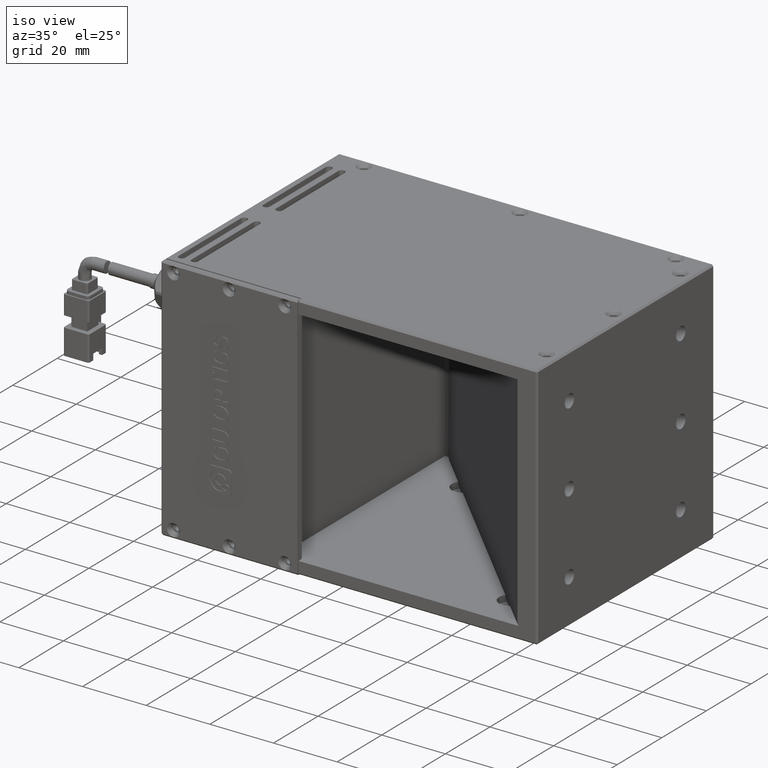
[diagram: clean part render]
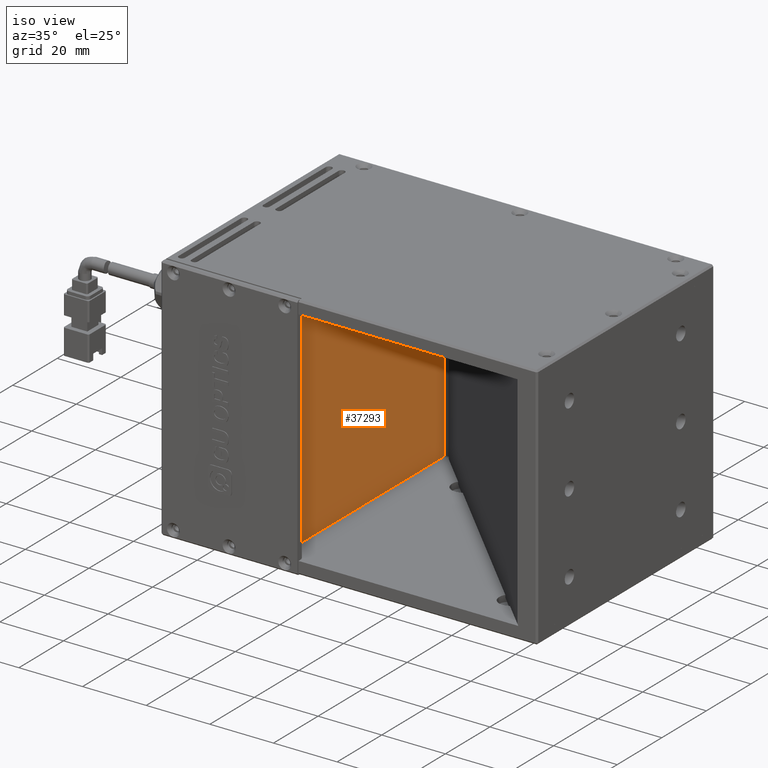
[diagram: same view with one face highlighted and labeled with its STEP entity id]
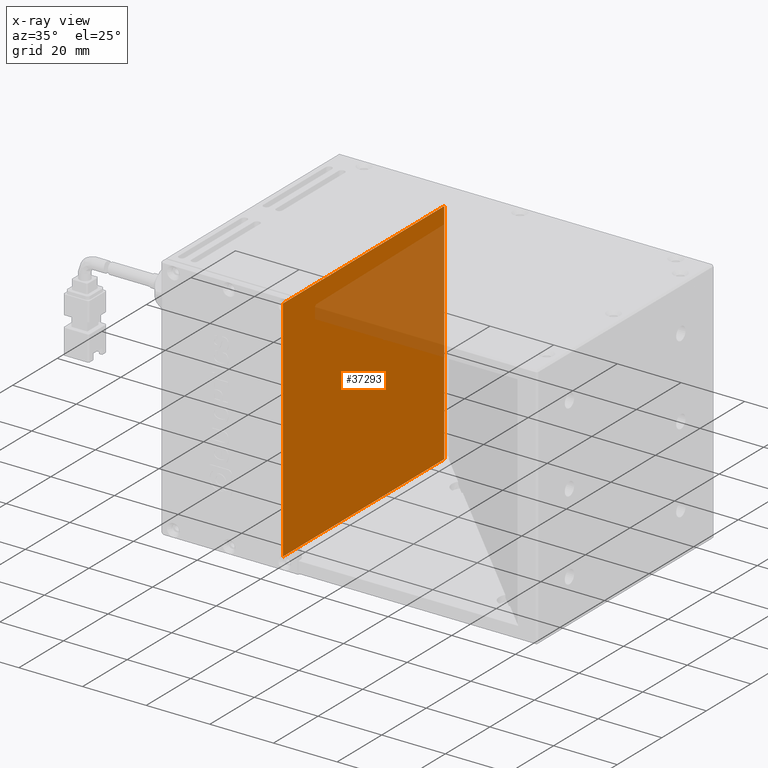
[diagram: x-ray of the same camera — body ghosted, the highlighted face saturated]
A machine part, iso view. The second image highlights one B-rep face of the part: STEP entity #37293.
The next image is the same camera in x-ray: the body ghosted, the highlighted face saturated — about 23% of this face is hidden behind the body in this view.
In plain terms, the highlighted planar face has unit normal (-1, 0, -0).
Its self-contained STEP definition (entity closure, byte-faithful):
#412 = DIRECTION ( 'NONE',  ( 1.146924612216070700E-016, 1.000000000000000000, -2.465190328815661900E-032 ) ) ;
#1282 = VERTEX_POINT ( 'NONE', #6835 ) ;
#2641 = VECTOR ( 'NONE', #11628, 1000.000000000000000 ) ;
#5765 = EDGE_LOOP ( 'NONE', ( #67454, #19610, #57285, #51862 ) ) ;
#6107 = CARTESIAN_POINT ( 'NONE',  ( -35.96055359734604900, -15.91808924827790900, 3.000000000009550600 ) ) ;
#6835 = CARTESIAN_POINT ( 'NONE',  ( -35.96055359734604900, -15.91808924827790900, 74.90000000000955500 ) ) ;
#7807 = VERTEX_POINT ( 'NONE', #23026 ) ;
#9333 = CARTESIAN_POINT ( 'NONE',  ( -35.96055359734604900, -15.91808924827790900, 3.000000000009550600 ) ) ;
#11171 = PLANE ( 'NONE',  #22100 ) ;
#11551 = LINE ( 'NONE', #58669, #39074 ) ;
#11628 = DIRECTION ( 'NONE',  ( 1.146924612216070700E-016, 1.000000000000000000, -2.465190328815661900E-032 ) ) ;
#12231 = LINE ( 'NONE', #62930, #41454 ) ;
#13198 = CARTESIAN_POINT ( 'NONE',  ( -35.96055359734603500, 56.58191075172208400, 3.000000000009550600 ) ) ;
#19610 = ORIENTED_EDGE ( 'NONE', *, *, #29481, .T. ) ;
#22100 = AXIS2_PLACEMENT_3D ( 'NONE', #66228, #33305, #412 ) ;
#23026 = CARTESIAN_POINT ( 'NONE',  ( -35.96055359734603500, 56.58191075172208400, 74.90000000000955500 ) ) ;
#23726 = FACE_OUTER_BOUND ( 'NONE', #5765, .T. ) ;
#24559 = VERTEX_POINT ( 'NONE', #9333 ) ;
#29481 = EDGE_CURVE ( 'NONE', #24559, #59233, #61132, .T. ) ;
#30156 = VECTOR ( 'NONE', #40834, 1000.000000000000000 ) ;
#32028 = EDGE_CURVE ( 'NONE', #1282, #24559, #12231, .T. ) ;
#33305 = DIRECTION ( 'NONE',  ( -1.000000000000000000, 1.146924612216070700E-016, -7.163480923846206400E-048 ) ) ;
#37293 = ADVANCED_FACE ( 'NONE', ( #23726 ), #11171, .F. ) ;
#38528 = EDGE_CURVE ( 'NONE', #7807, #1282, #44718, .T. ) ;
#39074 = VECTOR ( 'NONE', #64190, 1000.000000000000000 ) ;
#40834 = DIRECTION ( 'NONE',  ( -1.146924612216070700E-016, -1.000000000000000000, 2.465190328815661900E-032 ) ) ;
#41454 = VECTOR ( 'NONE', #68197, 1000.000000000000000 ) ;
#44718 = LINE ( 'NONE', #51630, #30156 ) ;
#51630 = CARTESIAN_POINT ( 'NONE',  ( -35.96055359734604900, -15.91808924827790900, 74.90000000000955500 ) ) ;
#51862 = ORIENTED_EDGE ( 'NONE', *, *, #38528, .T. ) ;
#57285 = ORIENTED_EDGE ( 'NONE', *, *, #63710, .T. ) ;
#58669 = CARTESIAN_POINT ( 'NONE',  ( -35.96055359734603500, 56.58191075172208400, 74.90000000000955500 ) ) ;
#59233 = VERTEX_POINT ( 'NONE', #13198 ) ;
#61132 = LINE ( 'NONE', #6107, #2641 ) ;
#62930 = CARTESIAN_POINT ( 'NONE',  ( -35.96055359734604900, -15.91808924827790900, 74.90000000000955500 ) ) ;
#63710 = EDGE_CURVE ( 'NONE', #59233, #7807, #11551, .T. ) ;
#64190 = DIRECTION ( 'NONE',  ( -4.336093461930496200E-048, 2.465190328815661900E-032, 1.000000000000000000 ) ) ;
#66228 = CARTESIAN_POINT ( 'NONE',  ( -35.96055359734603500, 56.58191075172208400, 74.90000000000955500 ) ) ;
#67454 = ORIENTED_EDGE ( 'NONE', *, *, #32028, .T. ) ;
#68197 = DIRECTION ( 'NONE',  ( 4.336093461930496200E-048, -2.465190328815661900E-032, -1.000000000000000000 ) ) ;